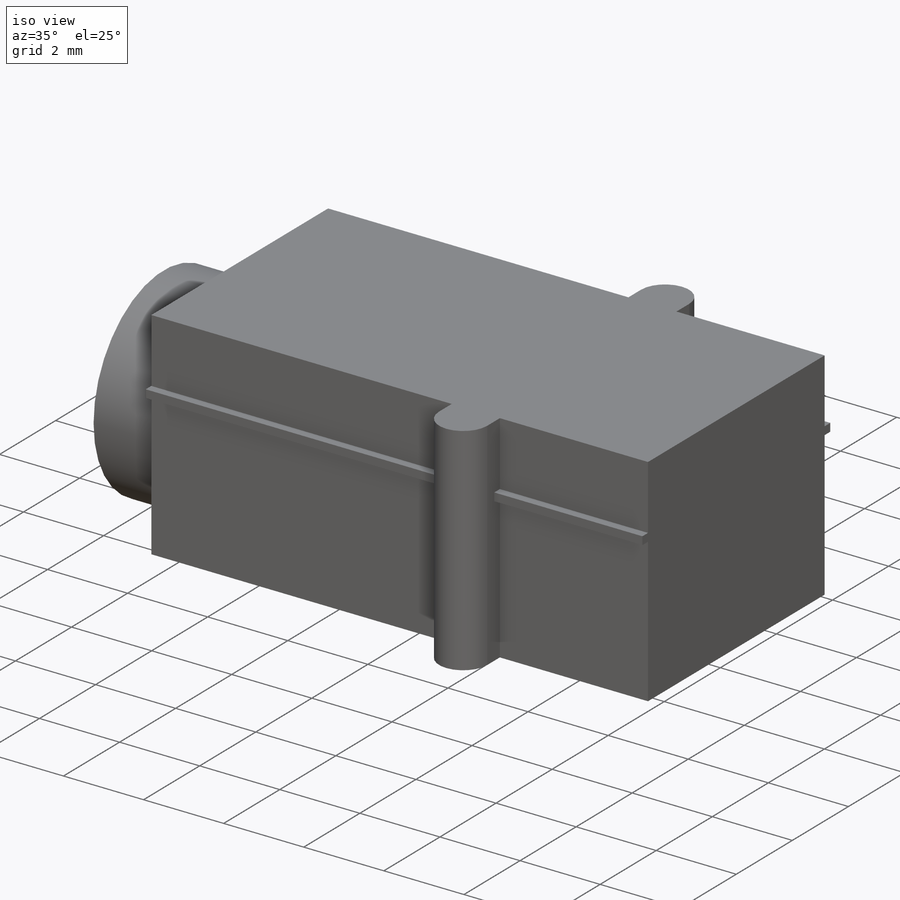
[diagram: iso view]
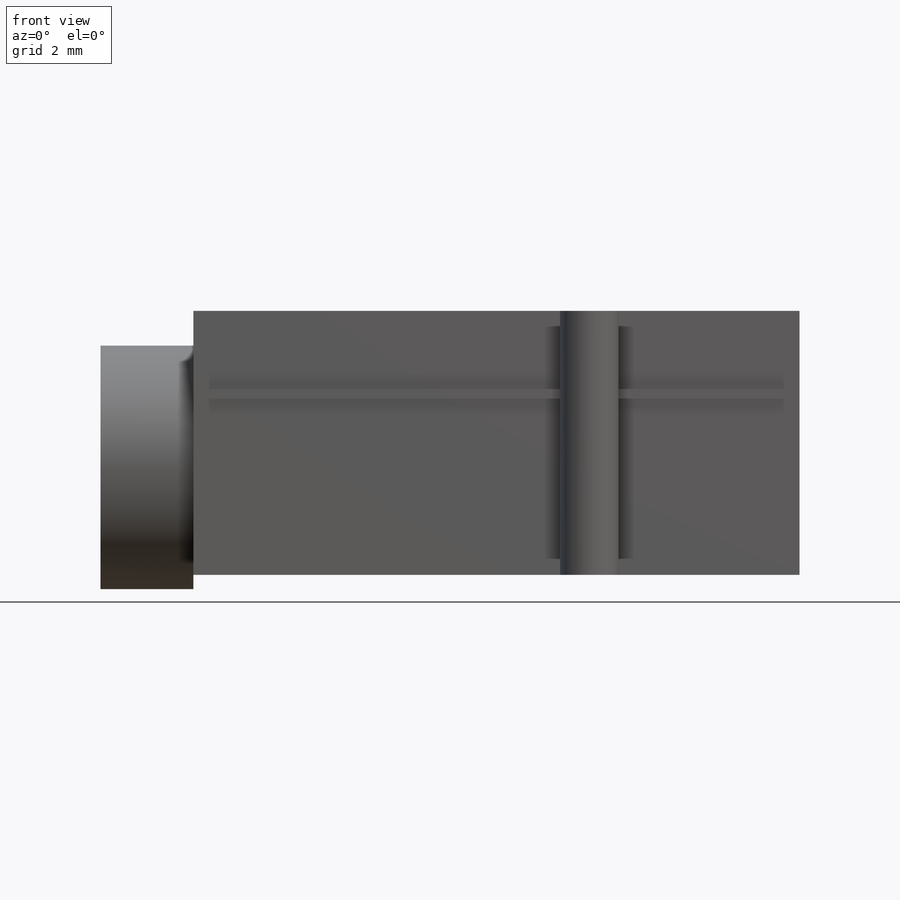
[diagram: front view]
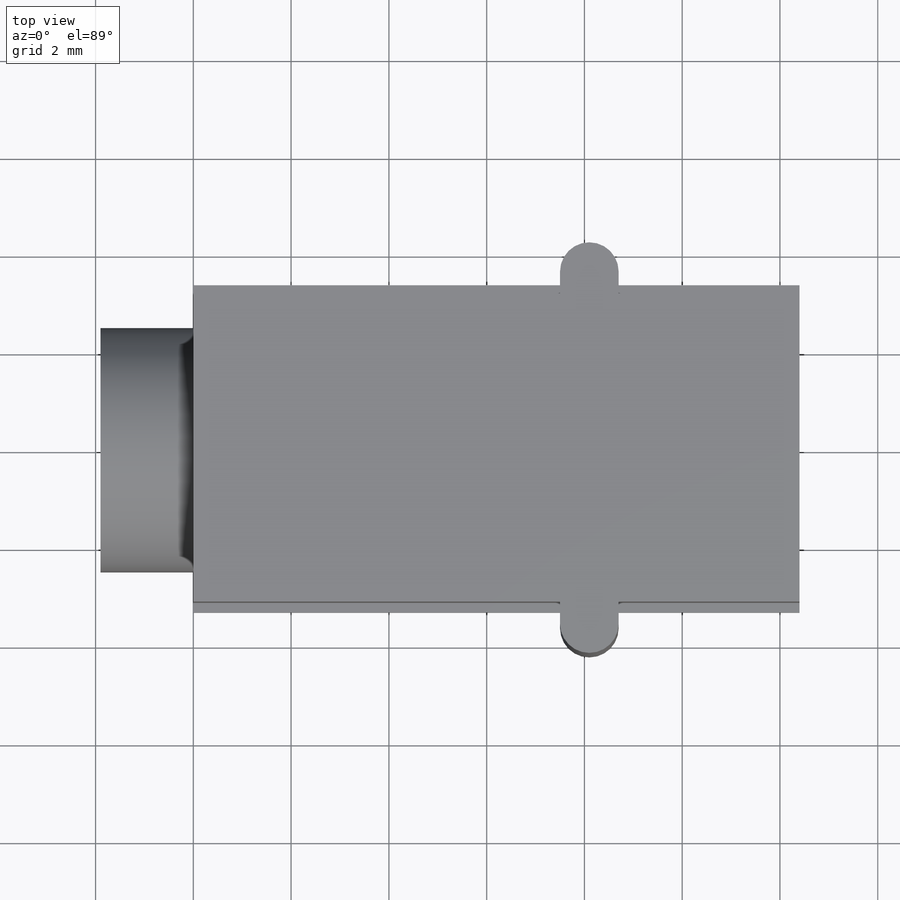
[diagram: top view]
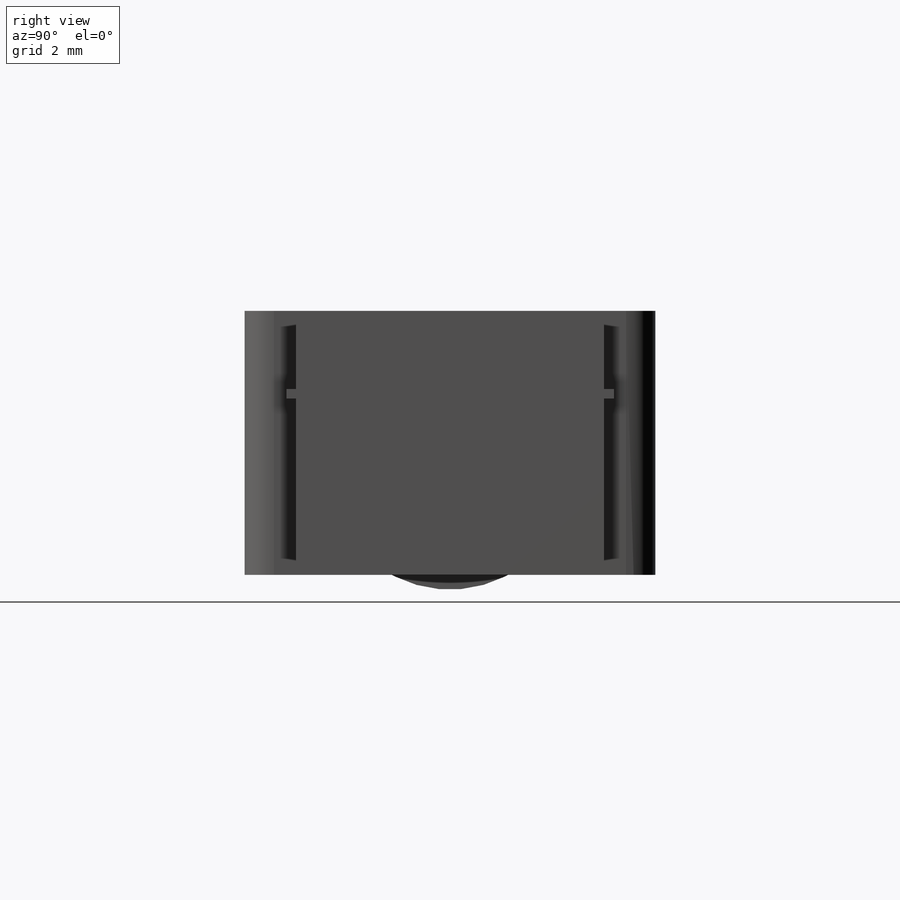
[diagram: right view]
SOLIDWORKS PART (.sldprt)
format: sldprt  version: not decoded by parser v0  size: 158,720 bytes
history: native  units: mm
features: sketch x3, extrude x3, material x1, plane x1 (+11 scaffold rows collapsed)
feature tree (19):
  scaffold x11  (default folders/planes/origin — collapsed)
  material  "Material <not specified>"
  sketch  "Sketch1"  dims[D1=6.3mm D2=1.2mm D3=4.2mm D4=4.2mm D5=8.1mm D6=12.4mm]
  extrude  "Boss-Extrude1"  Depth=5.4mm
  sketch  "Sketch2"  dims[D2=5.0mm D1=2.2mm]
  extrude  "Boss-Extrude2"  Depth=1.9mm
  plane  "Plane1"  Offset=3.6mm
  sketch  "Sketch3"  dims[D1=0.2mm]
  extrude  "Boss-Extrude3"  Depth=0.2mm
decode coverage: 6 of 6 modeling features carry decoded parameters
note: suppression state not decoded; provenance and decode notes live in map.json
